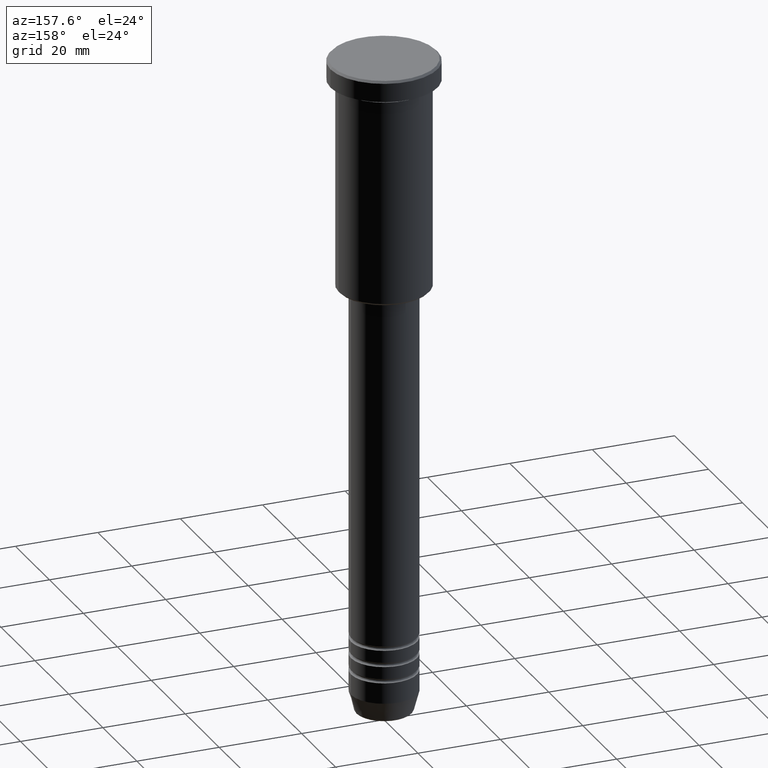
[diagram: clean part render]
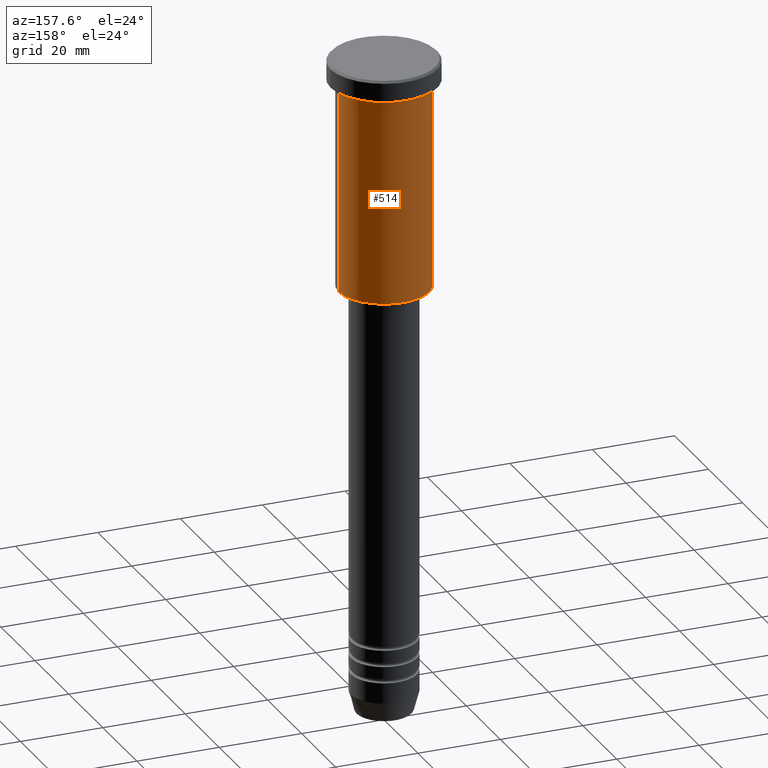
[diagram: same view with one face highlighted and labeled with its STEP entity id]
A machine part, auxiliary view. The second image highlights one B-rep face of the part: STEP entity #514.
In plain terms, the highlighted cylindrical surface (partial cylindrical patch) has radius 11 mm, axis along (-0, -0, 1).
Its self-contained STEP definition (entity closure, byte-faithful):
#24 = FACE_OUTER_BOUND ( 'NONE', #292, .T. ) ;
#31 = EDGE_CURVE ( 'NONE', #152, #601, #1037, .T. ) ;
#36 = CARTESIAN_POINT ( 'NONE',  ( 11.00000000000000000, 0.000000000000000000, -55.50000000000001421 ) ) ;
#53 = CIRCLE ( 'NONE', #343, 11.00000000000000000 ) ;
#66 = EDGE_CURVE ( 'NONE', #647, #152, #737, .T. ) ;
#67 = ORIENTED_EDGE ( 'NONE', *, *, #31, .F. ) ;
#82 = CARTESIAN_POINT ( 'NONE',  ( 0.000000000000000000, 0.000000000000000000, -55.50000000000001421 ) ) ;
#99 = DIRECTION ( 'NONE',  ( -0.000000000000000000, -0.000000000000000000, 1.000000000000000000 ) ) ;
#149 = ORIENTED_EDGE ( 'NONE', *, *, #583, .T. ) ;
#152 = VERTEX_POINT ( 'NONE', #652 ) ;
#207 = DIRECTION ( 'NONE',  ( -0.000000000000000000, -0.000000000000000000, 1.000000000000000000 ) ) ;
#268 = VECTOR ( 'NONE', #99, 1000.000000000000000 ) ;
#292 = EDGE_LOOP ( 'NONE', ( #342, #149, #67, #651 ) ) ;
#304 = CARTESIAN_POINT ( 'NONE',  ( -11.00000000000000000, 1.347111479062088405E-15, -55.50000000000001421 ) ) ;
#342 = ORIENTED_EDGE ( 'NONE', *, *, #368, .T. ) ;
#343 = AXIS2_PLACEMENT_3D ( 'NONE', #82, #818, #1176 ) ;
#362 = AXIS2_PLACEMENT_3D ( 'NONE', #392, #571, #1172 ) ;
#368 = EDGE_CURVE ( 'NONE', #647, #1112, #53, .T. ) ;
#373 = CARTESIAN_POINT ( 'NONE',  ( -11.00000000000000000, 1.347111479062088405E-15, -5.999999999999999112 ) ) ;
#388 = DIRECTION ( 'NONE',  ( -0.000000000000000000, -0.000000000000000000, 1.000000000000000000 ) ) ;
#392 = CARTESIAN_POINT ( 'NONE',  ( 0.000000000000000000, 0.000000000000000000, -5.999999999999999112 ) ) ;
#458 = CYLINDRICAL_SURFACE ( 'NONE', #600, 11.00000000000000000 ) ;
#462 = LINE ( 'NONE', #824, #268 ) ;
#474 = DIRECTION ( 'NONE',  ( 1.000000000000000000, 0.000000000000000000, 0.000000000000000000 ) ) ;
#480 = CARTESIAN_POINT ( 'NONE',  ( 11.00000000000000000, 0.000000000000000000, 0.000000000000000000 ) ) ;
#514 = ADVANCED_FACE ( 'NONE', ( #24 ), #458, .T. ) ;
#571 = DIRECTION ( 'NONE',  ( -0.000000000000000000, -0.000000000000000000, 1.000000000000000000 ) ) ;
#583 = EDGE_CURVE ( 'NONE', #1112, #601, #462, .T. ) ;
#600 = AXIS2_PLACEMENT_3D ( 'NONE', #1110, #388, #474 ) ;
#601 = VERTEX_POINT ( 'NONE', #373 ) ;
#647 = VERTEX_POINT ( 'NONE', #36 ) ;
#651 = ORIENTED_EDGE ( 'NONE', *, *, #66, .F. ) ;
#652 = CARTESIAN_POINT ( 'NONE',  ( 11.00000000000000000, 0.000000000000000000, -5.999999999999999112 ) ) ;
#737 = LINE ( 'NONE', #480, #930 ) ;
#818 = DIRECTION ( 'NONE',  ( -0.000000000000000000, -0.000000000000000000, 1.000000000000000000 ) ) ;
#824 = CARTESIAN_POINT ( 'NONE',  ( -11.00000000000000000, 1.347111479062088405E-15, 0.000000000000000000 ) ) ;
#930 = VECTOR ( 'NONE', #207, 1000.000000000000000 ) ;
#1037 = CIRCLE ( 'NONE', #362, 11.00000000000000000 ) ;
#1110 = CARTESIAN_POINT ( 'NONE',  ( 0.000000000000000000, 0.000000000000000000, 0.000000000000000000 ) ) ;
#1112 = VERTEX_POINT ( 'NONE', #304 ) ;
#1172 = DIRECTION ( 'NONE',  ( 1.000000000000000000, 0.000000000000000000, 0.000000000000000000 ) ) ;
#1176 = DIRECTION ( 'NONE',  ( -1.000000000000000000, 0.000000000000000000, 0.000000000000000000 ) ) ;